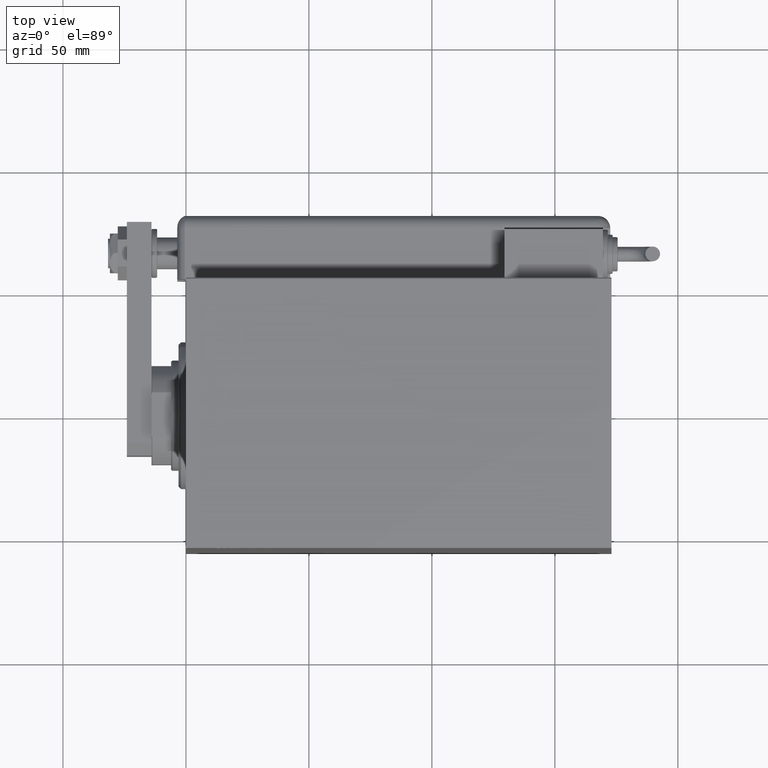
[diagram: clean part render]
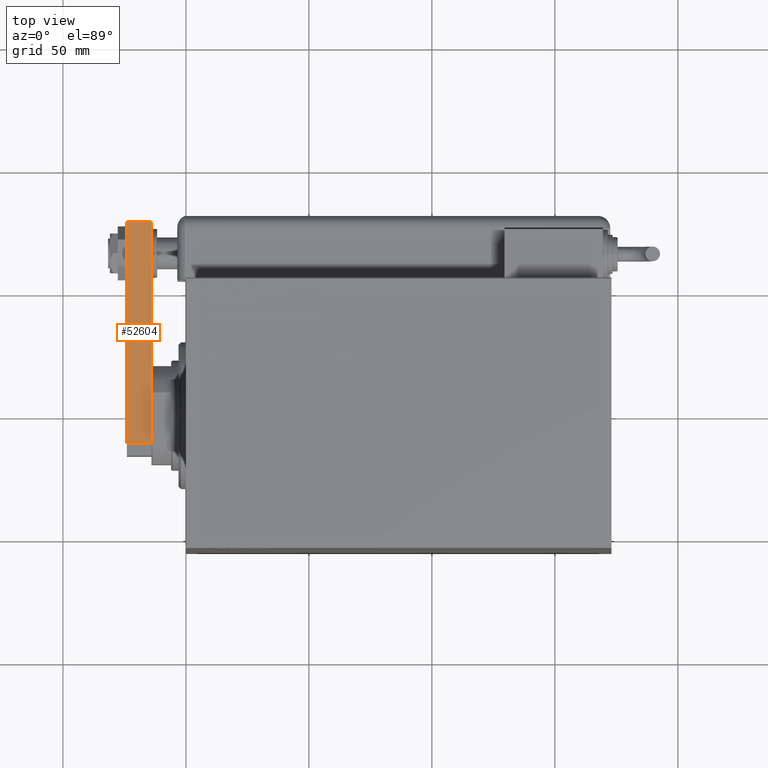
[diagram: same view with one face highlighted and labeled with its STEP entity id]
A machine part, top view. The second image highlights one B-rep face of the part: STEP entity #52604.
In plain terms, the highlighted planar face has unit normal (-0, -0, -1).
Its self-contained STEP definition (entity closure, byte-faithful):
#846 = ORIENTED_EDGE ( 'NONE', *, *, #46987, .T. ) ;
#1016 = FACE_OUTER_BOUND ( 'NONE', #46546, .T. ) ;
#1321 = DIRECTION ( 'NONE',  ( 1.000000000000000000, -7.304098846218135653E-17, 0.000000000000000000 ) ) ;
#1410 = VERTEX_POINT ( 'NONE', #41432 ) ;
#1497 = VERTEX_POINT ( 'NONE', #56871 ) ;
#3239 = VERTEX_POINT ( 'NONE', #43148 ) ;
#4897 = CARTESIAN_POINT ( 'NONE',  ( -17.50000000000001066, 5.000000000000018652, 0.000000000000000000 ) ) ;
#5316 = ORIENTED_EDGE ( 'NONE', *, *, #32451, .T. ) ;
#5651 = DIRECTION ( 'NONE',  ( -7.304098846218135653E-17, -1.000000000000000000, 0.000000000000000000 ) ) ;
#9456 = VECTOR ( 'NONE', #29131, 1000.000000000000000 ) ;
#9765 = LINE ( 'NONE', #56014, #23743 ) ;
#9841 = EDGE_CURVE ( 'NONE', #1410, #1497, #27027, .T. ) ;
#10100 = EDGE_CURVE ( 'NONE', #1410, #3239, #9765, .T. ) ;
#19514 = ORIENTED_EDGE ( 'NONE', *, *, #10100, .T. ) ;
#21296 = CARTESIAN_POINT ( 'NONE',  ( -17.50000000000000355, 95.00000000000000000, 10.00000000000000000 ) ) ;
#23743 = VECTOR ( 'NONE', #27902, 1000.000000000000000 ) ;
#24887 = PLANE ( 'NONE',  #35720 ) ;
#26131 = DIRECTION ( 'NONE',  ( -7.304098846218135653E-17, -1.000000000000000000, 0.000000000000000000 ) ) ;
#27027 = LINE ( 'NONE', #21296, #31428 ) ;
#27902 = DIRECTION ( 'NONE',  ( -0.000000000000000000, -0.000000000000000000, -1.000000000000000000 ) ) ;
#29131 = DIRECTION ( 'NONE',  ( 0.000000000000000000, 0.000000000000000000, 1.000000000000000000 ) ) ;
#31428 = VECTOR ( 'NONE', #26131, 1000.000000000000000 ) ;
#32451 = EDGE_CURVE ( 'NONE', #3239, #41150, #33150, .T. ) ;
#33150 = LINE ( 'NONE', #47042, #45757 ) ;
#35720 = AXIS2_PLACEMENT_3D ( 'NONE', #52694, #1321, #51813 ) ;
#39065 = LINE ( 'NONE', #56944, #9456 ) ;
#41150 = VERTEX_POINT ( 'NONE', #4897 ) ;
#41432 = CARTESIAN_POINT ( 'NONE',  ( -17.50000000000000355, 95.00000000000000000, 10.00000000000000000 ) ) ;
#43148 = CARTESIAN_POINT ( 'NONE',  ( -17.50000000000000355, 95.00000000000000000, 0.000000000000000000 ) ) ;
#45757 = VECTOR ( 'NONE', #5651, 1000.000000000000000 ) ;
#46546 = EDGE_LOOP ( 'NONE', ( #5316, #846, #51254, #19514 ) ) ;
#46987 = EDGE_CURVE ( 'NONE', #41150, #1497, #39065, .T. ) ;
#47042 = CARTESIAN_POINT ( 'NONE',  ( -17.50000000000000355, 95.00000000000000000, 0.000000000000000000 ) ) ;
#51254 = ORIENTED_EDGE ( 'NONE', *, *, #9841, .F. ) ;
#51813 = DIRECTION ( 'NONE',  ( 7.304098846218135653E-17, 1.000000000000000000, 0.000000000000000000 ) ) ;
#52604 = ADVANCED_FACE ( 'NONE', ( #1016 ), #24887, .F. ) ;
#52694 = CARTESIAN_POINT ( 'NONE',  ( -17.50000000000000355, 95.00000000000000000, 10.00000000000000000 ) ) ;
#56014 = CARTESIAN_POINT ( 'NONE',  ( -17.50000000000000355, 95.00000000000000000, 10.00000000000000000 ) ) ;
#56871 = CARTESIAN_POINT ( 'NONE',  ( -17.50000000000001066, 5.000000000000018652, 10.00000000000000000 ) ) ;
#56944 = CARTESIAN_POINT ( 'NONE',  ( -17.50000000000001066, 5.000000000000018652, 10.00000000000000000 ) ) ;